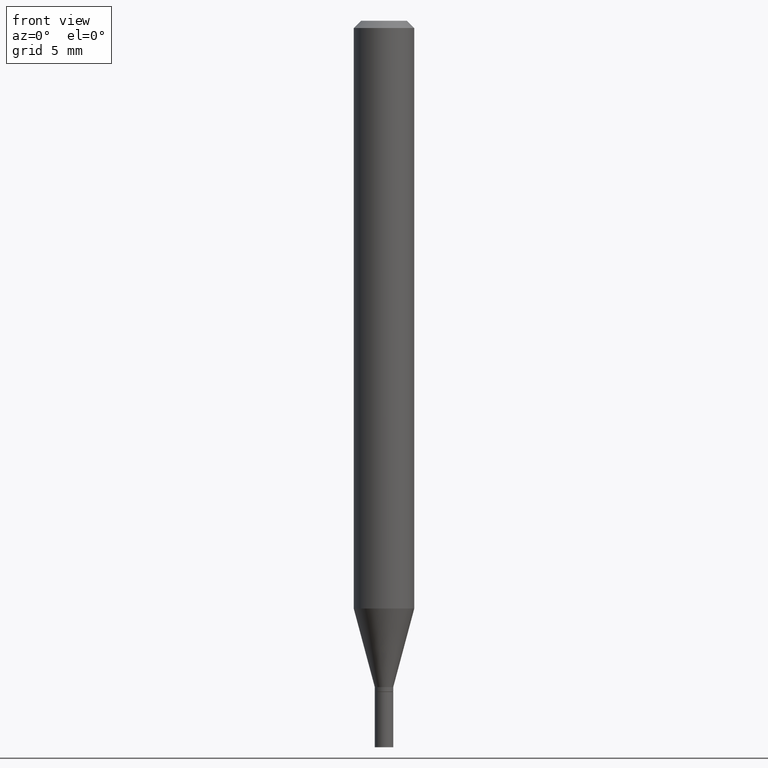
[diagram: clean part render]
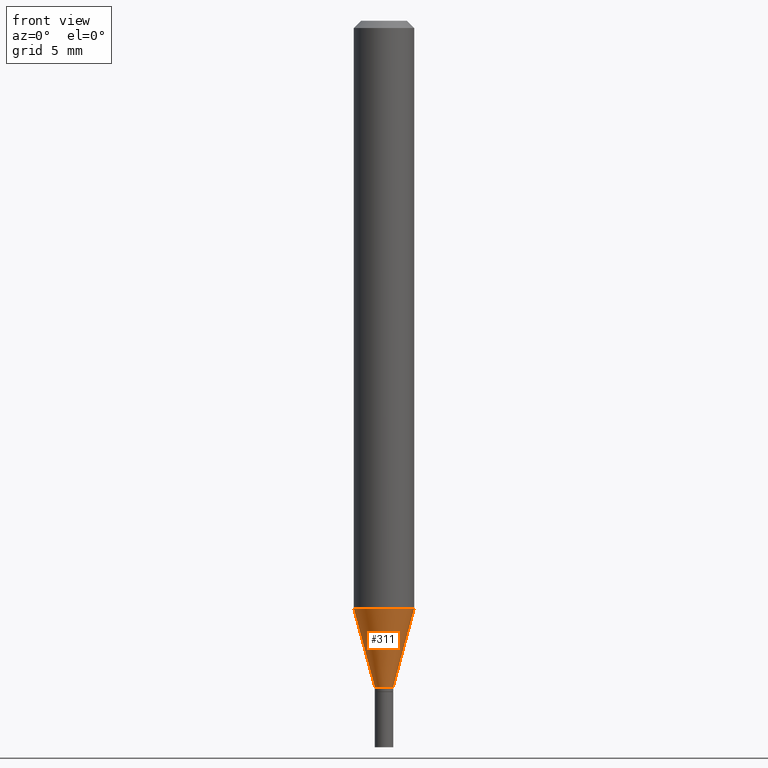
[diagram: same view with one face highlighted and labeled with its STEP entity id]
A machine part, front view. The second image highlights one B-rep face of the part: STEP entity #311.
In plain terms, the highlighted conical surface has half-angle 15 deg.
Its self-contained STEP definition (entity closure, byte-faithful):
#1 = CARTESIAN_POINT ( 'NONE',  ( 0.01900000000000019382, -4.936954613124209308E-15, -1.376000000000000112 ) ) ;
#12 = FACE_OUTER_BOUND ( 'NONE', #160, .T. ) ;
#22 = LINE ( 'NONE', #161, #35 ) ;
#31 = LINE ( 'NONE', #1, #340 ) ;
#34 = EDGE_CURVE ( 'NONE', #295, #38, #22, .T. ) ;
#35 = VECTOR ( 'NONE', #263, 39.37007874015748854 ) ;
#38 = VERTEX_POINT ( 'NONE', #414 ) ;
#62 = ORIENTED_EDGE ( 'NONE', *, *, #438, .T. ) ;
#82 = VERTEX_POINT ( 'NONE', #427 ) ;
#86 = DIRECTION ( 'NONE',  ( 1.000000000000000000, -6.982962677686261977E-15, 0.000000000000000000 ) ) ;
#89 = CIRCLE ( 'NONE', #288, 0.01900000000000019382 ) ;
#116 = CARTESIAN_POINT ( 'NONE',  ( 2.967957375574913989E-29, -4.237456542112679022E-15, -1.213655789870754953 ) ) ;
#160 = EDGE_LOOP ( 'NONE', ( #163, #62, #189, #353 ) ) ;
#161 = CARTESIAN_POINT ( 'NONE',  ( -0.01900000000000019382, -4.669275202453748782E-15, -1.376000000000000112 ) ) ;
#163 = ORIENTED_EDGE ( 'NONE', *, *, #34, .F. ) ;
#184 = DIRECTION ( 'NONE',  ( -2.445468806185136597E-29, 3.491481338843145583E-15, 1.000000000000000000 ) ) ;
#189 = ORIENTED_EDGE ( 'NONE', *, *, #191, .T. ) ;
#191 = EDGE_CURVE ( 'NONE', #336, #82, #31, .T. ) ;
#226 = CARTESIAN_POINT ( 'NONE',  ( 3.364965077310747863E-29, -4.804278322248168726E-15, -1.376000000000000112 ) ) ;
#243 = DIRECTION ( 'NONE',  ( 0.2588190451025212391, 1.565188264969622362E-15, 0.9659258262890679791 ) ) ;
#254 = DIRECTION ( 'NONE',  ( -2.445468806185136597E-29, 3.491481338843145583E-15, 1.000000000000000000 ) ) ;
#263 = DIRECTION ( 'NONE',  ( -0.2588190451025212391, 5.211531920934549464E-15, 0.9659258262890679791 ) ) ;
#269 = AXIS2_PLACEMENT_3D ( 'NONE', #116, #254, #404 ) ;
#288 = AXIS2_PLACEMENT_3D ( 'NONE', #226, #422, #86 ) ;
#295 = VERTEX_POINT ( 'NONE', #447 ) ;
#297 = CONICAL_SURFACE ( 'NONE', #359, 0.01900000000000019382, 0.2617993877991499629 ) ;
#305 = CIRCLE ( 'NONE', #269, 0.06250000000000000000 ) ;
#311 = ADVANCED_FACE ( 'NONE', ( #12 ), #297, .T. ) ;
#336 = VERTEX_POINT ( 'NONE', #410 ) ;
#340 = VECTOR ( 'NONE', #243, 39.37007874015748854 ) ;
#353 = ORIENTED_EDGE ( 'NONE', *, *, #385, .F. ) ;
#359 = AXIS2_PLACEMENT_3D ( 'NONE', #372, #184, #436 ) ;
#372 = CARTESIAN_POINT ( 'NONE',  ( 3.364965077310747863E-29, -4.804278322248168726E-15, -1.376000000000000112 ) ) ;
#385 = EDGE_CURVE ( 'NONE', #38, #82, #305, .T. ) ;
#404 = DIRECTION ( 'NONE',  ( 1.000000000000000000, -6.982962677686262766E-15, 0.000000000000000000 ) ) ;
#410 = CARTESIAN_POINT ( 'NONE',  ( 0.01900000000000019382, -4.936954613124209308E-15, -1.376000000000000112 ) ) ;
#414 = CARTESIAN_POINT ( 'NONE',  ( -0.06250000000000000000, -3.793367332262617194E-15, -1.213655789870754953 ) ) ;
#422 = DIRECTION ( 'NONE',  ( -2.445468806185136597E-29, 3.491481338843145583E-15, 1.000000000000000000 ) ) ;
#427 = CARTESIAN_POINT ( 'NONE',  ( 0.06250000000000000000, -4.673891709468070691E-15, -1.213655789870754953 ) ) ;
#436 = DIRECTION ( 'NONE',  ( 1.000000000000000000, -6.982962677686261977E-15, 0.000000000000000000 ) ) ;
#438 = EDGE_CURVE ( 'NONE', #295, #336, #89, .T. ) ;
#447 = CARTESIAN_POINT ( 'NONE',  ( -0.01900000000000019382, -4.231321267358182988E-15, -1.376000000000000112 ) ) ;